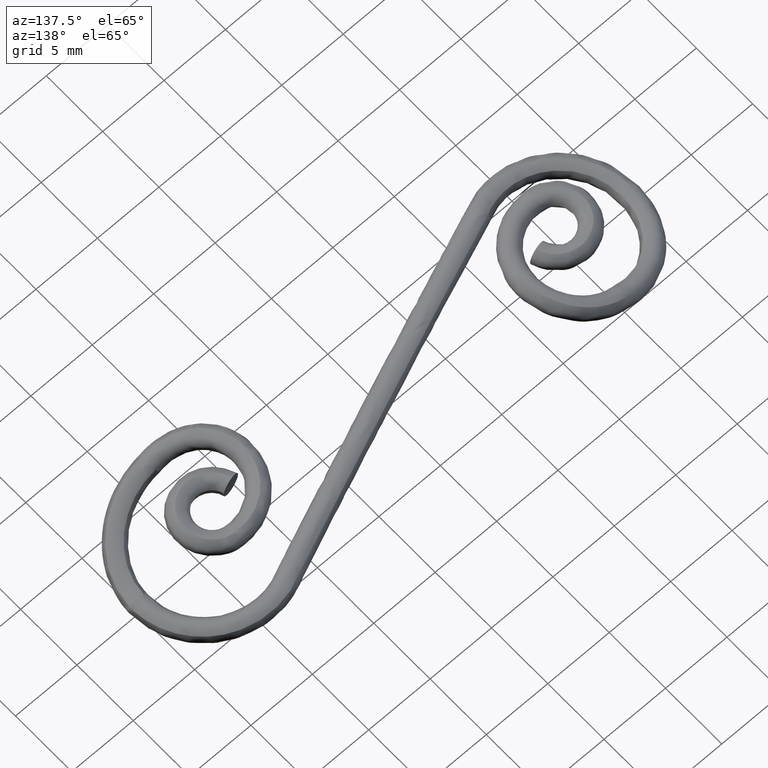
[diagram: clean part render]
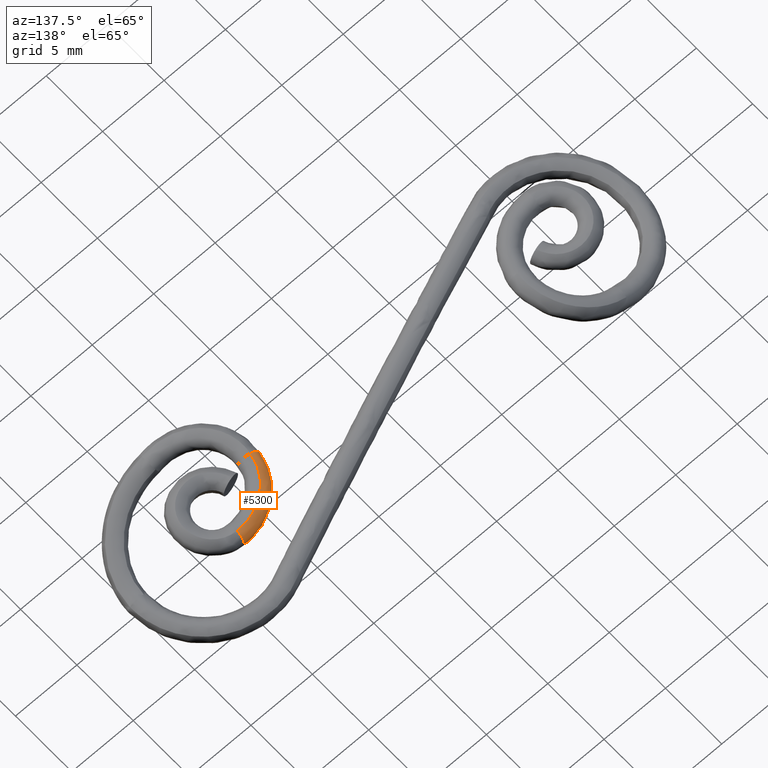
[diagram: same view with one face highlighted and labeled with its STEP entity id]
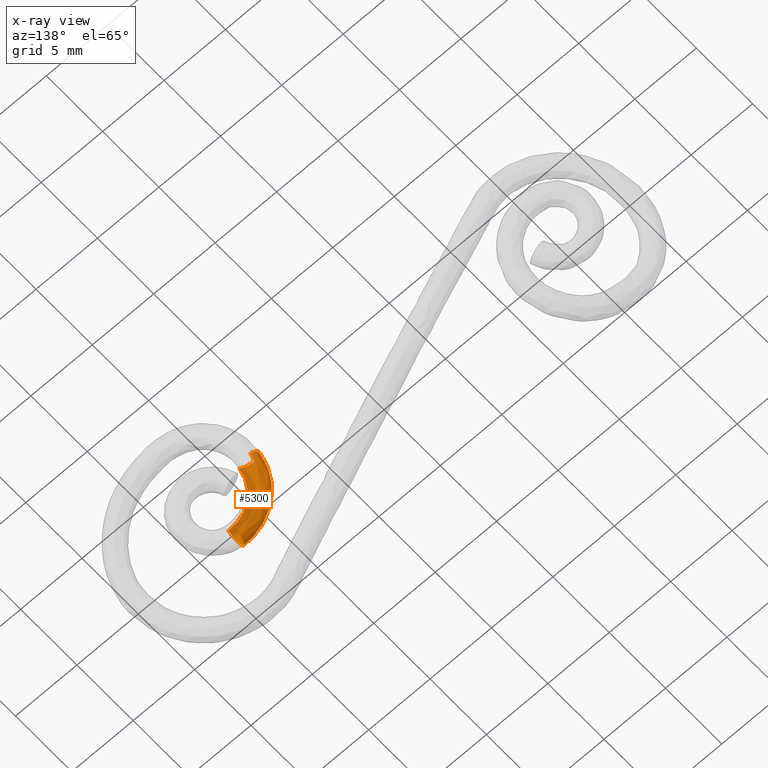
[diagram: x-ray of the same camera — body ghosted, the highlighted face saturated]
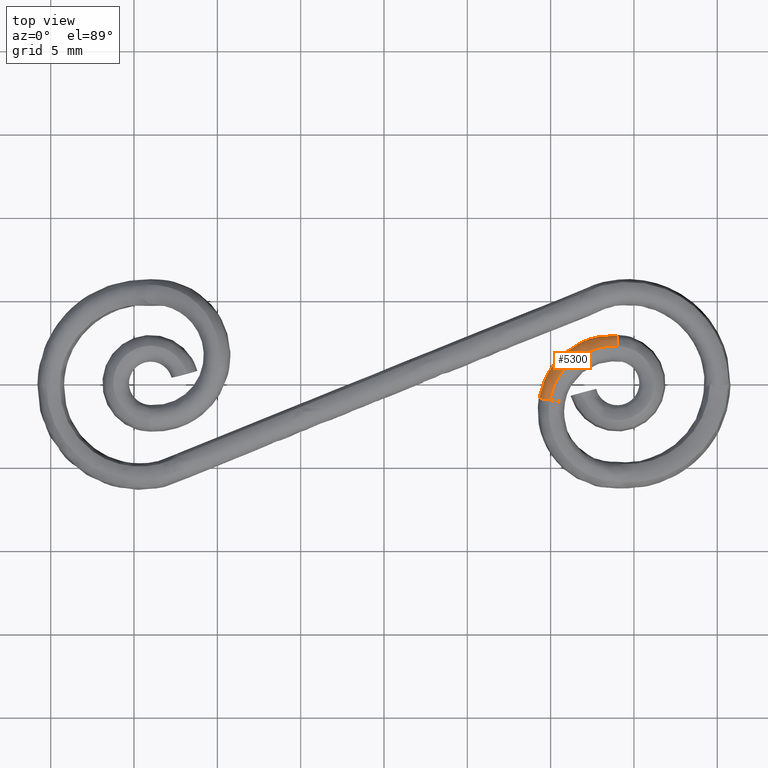
[diagram: same view with one face highlighted and labeled with its STEP entity id]
A machine part, auxiliary view. The second image highlights one B-rep face of the part: STEP entity #5300.
The next image is the same camera in x-ray: the body ghosted, the highlighted face saturated — about 0% of this face is hidden behind the body in this view.
A second angle (top view) of the same face is appended — the face is thin or edge-on in the first view.
In plain terms, the highlighted face is a freeform B-spline surface patch.
Its self-contained STEP definition (entity closure, byte-faithful):
#4702=CARTESIAN_POINT('',(9.282684114473470,-0.923350617557464,3.217396081615895));
#4703=VERTEX_POINT('',#4702);
#4704=CARTESIAN_POINT('',(10.513676460564820,-1.143521968190347,2.616905000033437));
#4705=VERTEX_POINT('',#4704);
#4706=CARTESIAN_POINT('',(9.282684114473470,-0.923350617557464,3.217396081615895));
#4707=CARTESIAN_POINT('',(9.284393471410823,-0.924282505267875,3.191397675883538));
#4708=CARTESIAN_POINT('',(9.287436445674933,-0.925445474761554,3.165060282524938));
#4709=CARTESIAN_POINT('',(9.296067311702984,-0.928165951323571,3.113570634881526));
#4710=CARTESIAN_POINT('',(9.301652022017734,-0.929728304030422,3.088206954885310));
#4711=CARTESIAN_POINT('',(9.322034644734202,-0.934993194110909,3.013205496741645));
#4712=CARTESIAN_POINT('',(9.340418147152501,-0.939266724288221,2.964644417163723));
#4713=CARTESIAN_POINT('',(9.386881283271949,-0.949357886877105,2.870433861863906));
#4714=CARTESIAN_POINT('',(9.414378799800854,-0.955047003249559,2.826048572100552));
#4715=CARTESIAN_POINT('',(9.461331661482269,-0.964414388401107,2.764199755471254));
#4716=CARTESIAN_POINT('',(9.477965608824727,-0.967682088388888,2.744332736526939));
#4717=CARTESIAN_POINT('',(9.513266926370232,-0.974517925103753,2.706148605410620));
#4718=CARTESIAN_POINT('',(9.532051285511635,-0.978107936283455,2.687736271717575));
#4719=CARTESIAN_POINT('',(9.590515990782665,-0.989143534768214,2.635973802800404));
#4720=CARTESIAN_POINT('',(9.632401806028099,-0.996873831954480,2.605957619772864));
#4721=CARTESIAN_POINT('',(9.721825127462742,-1.013059404118012,2.554651643379722));
#4722=CARTESIAN_POINT('',(9.769845843600786,-1.021599529300992,2.533189600907469));
#4723=CARTESIAN_POINT('',(9.867796435300242,-1.038744447100748,2.500451950932309));
#4724=CARTESIAN_POINT('',(9.917965901524250,-1.047395505733004,2.488922391279435));
#4725=CARTESIAN_POINT('',(9.995034987654710,-1.060491531662041,2.478982701405946));
#4726=CARTESIAN_POINT('',(10.021131936371949,-1.064893757440325,2.476914910369583));
#4727=CARTESIAN_POINT('',(10.072870636219109,-1.073556965170774,2.475403994993091));
#4728=CARTESIAN_POINT('',(10.098625814366370,-1.077837460704228,2.475936627422790));
#4729=CARTESIAN_POINT('',(10.175548039267600,-1.090525264485057,2.481407759362117));
#4730=CARTESIAN_POINT('',(10.226424315516271,-1.098786226625798,2.490276656927781));
#4731=CARTESIAN_POINT('',(10.326989034976100,-1.114841940856404,2.518783304107707));
#4732=CARTESIAN_POINT('',(10.375064426422171,-1.122381545492502,2.537868110567592));
#4733=CARTESIAN_POINT('',(10.444111030453330,-1.133012552462374,2.573208446737819));
#4734=CARTESIAN_POINT('',(10.466610334366811,-1.136442015465810,2.586118688061240));
#4735=CARTESIAN_POINT('',(10.497031095675601,-1.141028822539685,2.605585673404670));
#4736=CARTESIAN_POINT('',(10.505404505990130,-1.142285797013978,2.611167244362098));
#4737=CARTESIAN_POINT('',(10.513676460564820,-1.143521968190347,2.616905000033437));
#4738=B_SPLINE_CURVE_WITH_KNOTS('',3,(#4706,#4707,#4708,#4709,#4710,#4711,#4712,#4713,#4714,#4715,#4716,#4717,#4718,#4719,#4720,#4721,#4722,#4723,#4724,#4725,#4726,#4727,#4728,#4729,#4730,#4731,#4732,#4733,#4734,#4735,#4736,#4737),.UNSPECIFIED.,.F.,.U.,(4,2,2,2,2,2,2,2,2,2,2,2,2,2,2,4),(0.0,0.031250000000000,0.062500000000001,0.125000000000002,0.187500000000002,0.218750000000002,0.250000000000003,0.312500000000002,0.375000000000001,0.437500000000000,0.468750000000000,0.500000000000001,0.562500000000000,0.624999999999999,0.656249999999998,0.668263455900424),.UNSPECIFIED.);
#4739=EDGE_CURVE('',#4703,#4705,#4738,.T.);
#4768=CARTESIAN_POINT('',(9.945481316624836,-1.013603917874896,4.066437259172098));
#4769=VERTEX_POINT('',#4768);
#4791=CARTESIAN_POINT('',(9.282684114473470,-0.923350617557464,3.217396081615895));
#4792=CARTESIAN_POINT('',(9.280976861064485,-0.922417198559043,3.243368745901354));
#4793=CARTESIAN_POINT('',(9.280533650297882,-0.921681014407856,3.269932114586529));
#4794=CARTESIAN_POINT('',(9.282243214184797,-0.920659283423144,3.322703605380643));
#4795=CARTESIAN_POINT('',(9.284368457609974,-0.920369724447849,3.348846208459274));
#4796=CARTESIAN_POINT('',(9.294377606026378,-0.920133694338340,3.426578652125638));
#4797=CARTESIAN_POINT('',(9.305850561302021,-0.920812308984766,3.477481617082491));
#4798=CARTESIAN_POINT('',(9.330394346965294,-0.923103522019722,3.552432439641163));
#4799=CARTESIAN_POINT('',(9.339824998591581,-0.924084294059405,3.577169919345759));
#4800=CARTESIAN_POINT('',(9.360793988405469,-0.926438536457236,3.625112927196724));
#4801=CARTESIAN_POINT('',(9.383951477145580,-0.929192390499100,3.671796261254093));
#4802=CARTESIAN_POINT('',(9.411517854980900,-0.932748950489456,3.715942055775823));
#4803=CARTESIAN_POINT('',(9.441385540724168,-0.936723246638552,3.758763418637139));
#4804=CARTESIAN_POINT('',(9.457576409287773,-0.938934498675549,3.779619693839603));
#4805=CARTESIAN_POINT('',(9.508861683992169,-0.946092894350014,3.839235377240476));
#4806=CARTESIAN_POINT('',(9.546454454635233,-0.951530002331858,3.874988605699576));
#4807=CARTESIAN_POINT('',(9.628017603616060,-0.963643678151427,3.939016508754129));
#4808=CARTESIAN_POINT('',(9.672489979278657,-0.970399399709290,3.967488721962418));
#4809=CARTESIAN_POINT('',(9.764791829487322,-0.984693548435985,4.014702335734270));
#4810=CARTESIAN_POINT('',(9.812769132518300,-0.992250876191731,4.033692185384326));
#4811=CARTESIAN_POINT('',(9.887602975442666,-1.004228638331235,4.054928070389503));
#4812=CARTESIAN_POINT('',(9.913167579774942,-1.008351764558939,4.060802309664616));
#4813=CARTESIAN_POINT('',(9.940960775021365,-1.012868537977151,4.065676660435051));
#4814=CARTESIAN_POINT('',(9.943220849588242,-1.013236074686827,4.066062277724410));
#4815=CARTESIAN_POINT('',(9.945481316624836,-1.013603917874896,4.066437259172098));
#4816=B_SPLINE_CURVE_WITH_KNOTS('',3,(#4791,#4792,#4793,#4794,#4795,#4796,#4797,#4798,#4799,#4800,#4801,#4802,#4803,#4804,#4805,#4806,#4807,#4808,#4809,#4810,#4811,#4812,#4813,#4814,#4815),.UNSPECIFIED.,.F.,.U.,(4,2,2,2,2,1,2,2,2,2,2,2,4),(0.0,0.031250000000001,0.062500000000002,0.125000000000004,0.156250000000005,0.187500000000006,0.218750000000007,0.250000000000008,0.312500000000008,0.375000000000009,0.437500000000009,0.468750000000009,0.471515581245946),.UNSPECIFIED.);
#4817=EDGE_CURVE('',#4703,#4769,#4816,.T.);
#4949=CARTESIAN_POINT('',(10.722932929362081,-1.173111546270209,2.829531334773518));
#4950=VERTEX_POINT('',#4949);
#4951=CARTESIAN_POINT('',(10.513676460564820,-1.143521968190347,2.616905000033437));
#4952=CARTESIAN_POINT('',(10.526921893622941,-1.145501282832881,2.626092642992708));
#4953=CARTESIAN_POINT('',(10.539907194000120,-1.147427257746447,2.635680743774004));
#4954=CARTESIAN_POINT('',(10.593495488021940,-1.155312490280779,2.677777538408749));
#4955=CARTESIAN_POINT('',(10.631039853781861,-1.160679780205417,2.713581568676701));
#4956=CARTESIAN_POINT('',(10.682031562046710,-1.167703372069798,2.772895782447685));
#4957=CARTESIAN_POINT('',(10.698206159586761,-1.169881254022200,2.793718350816673));
#4958=CARTESIAN_POINT('',(10.716531187097541,-1.172281409081400,2.820011084614498));
#4959=CARTESIAN_POINT('',(10.719760666027950,-1.172701603158186,2.824756898034977));
#4960=CARTESIAN_POINT('',(10.722932929362081,-1.173111546270209,2.829531334773518));
#4961=B_SPLINE_CURVE_WITH_KNOTS('',3,(#4951,#4952,#4953,#4954,#4955,#4956,#4957,#4958,#4959,#4960),.UNSPECIFIED.,.F.,.U.,(4,2,2,2,4),(0.668263455900424,0.687499999999998,0.749999999999998,0.781249999999998,0.788081715581043),.UNSPECIFIED.);
#4962=EDGE_CURVE('',#4705,#4950,#4961,.T.);
#5018=CARTESIAN_POINT('',(10.723885286854820,-1.222017740586140,2.841492215932604));
#5019=CARTESIAN_POINT('',(10.605699959037690,-1.198289696586253,2.653523764025367));
#5020=CARTESIAN_POINT('',(10.405885924326880,-1.162833905628451,2.521205403999340));
#5021=CARTESIAN_POINT('',(9.984723313510408,-1.093353741525570,2.451334204795789));
#5022=CARTESIAN_POINT('',(9.767955796109913,-1.059789292187724,2.502769109848134));
#5023=CARTESIAN_POINT('',(9.431145535767213,-1.011769639940882,2.747132304448064));
#5024=CARTESIAN_POINT('',(9.313176814704532,-0.997610134095447,2.938555845331546));
#5025=CARTESIAN_POINT('',(9.244721107626766,-0.996986673295411,3.351802954415363));
#5026=CARTESIAN_POINT('',(9.294655660581356,-1.010526557510989,3.571081815028518));
#5027=CARTESIAN_POINT('',(9.537679512341164,-1.058258560191697,3.915423960066097));
#5028=CARTESIAN_POINT('',(9.732792749734017,-1.092657546230017,4.035768033732643));
#5029=CARTESIAN_POINT('',(9.942595169788911,-1.127159531988741,4.066212834213801));
#5030=CARTESIAN_POINT('',(10.728107801638140,-1.196600349275869,2.842128853946125));
#5031=CARTESIAN_POINT('',(10.609891975758540,-1.173077468666190,2.654155205131981));
#5032=CARTESIAN_POINT('',(10.410025581562390,-1.137973901268973,2.521827923089142));
#5033=CARTESIAN_POINT('',(9.988751710761443,-1.069242181724335,2.451937765382577));
#5034=CARTESIAN_POINT('',(9.771926553635456,-1.036065472405868,2.503362848775909));
#5035=CARTESIAN_POINT('',(9.435026026978745,-0.988653034674670,2.747710662319892));
#5036=CARTESIAN_POINT('',(9.317025235172567,-0.974709264198940,2.939128738520437));
#5037=CARTESIAN_POINT('',(9.248549619603439,-0.974219719265285,3.352372455463396));
#5038=CARTESIAN_POINT('',(9.298496457403353,-0.987676959345699,3.571653409506869));
#5039=CARTESIAN_POINT('',(9.541583203375160,-1.034985867477825,3.916006271771163));
#5040=CARTESIAN_POINT('',(9.736747606524288,-1.069040660375688,4.036359064039132));
#5041=CARTESIAN_POINT('',(9.946605469550091,-1.103169682030750,4.066813311901330));
#5042=CARTESIAN_POINT('',(10.748632024134031,-1.064696767324554,2.845455193775675));
#5043=CARTESIAN_POINT('',(10.630553565283220,-1.040103346196110,2.657509015257829));
#5044=CARTESIAN_POINT('',(10.430923010932711,-1.003161880572368,2.525228893928689));
#5045=CARTESIAN_POINT('',(10.010150289104500,-0.930524787364509,2.455438948472118));
#5046=CARTESIAN_POINT('',(9.793584761806592,-0.895324856191134,2.506915947859535));
#5047=CARTESIAN_POINT('',(9.457090832139441,-0.844743982514752,2.751345063536111));
#5048=CARTESIAN_POINT('',(9.339234503737885,-0.829674508653230,2.942792025230074));
#5049=CARTESIAN_POINT('',(9.270848576133638,-0.828486194294130,3.356053672339840));
#5050=CARTESIAN_POINT('',(9.320740086210369,-0.842374671241875,3.575323560645732));
#5051=CARTESIAN_POINT('',(9.563543547479645,-0.891891282318319,3.919619772817719));
#5052=CARTESIAN_POINT('',(9.758477487333543,-0.927742070771587,4.039926479606890));
#5053=CARTESIAN_POINT('',(9.968085618130026,-0.963817214097438,4.070330789810012));
#5054=CARTESIAN_POINT('',(10.770146625040660,-0.965326084853980,2.847863017053571));
#5055=CARTESIAN_POINT('',(10.653313491961590,-0.934326941347964,2.660074348433303));
#5056=CARTESIAN_POINT('',(10.455820956143951,-0.886388168505576,2.528064638370055));
#5057=CARTESIAN_POINT('',(10.039591392894460,-0.790382758173182,2.458849292323177));
#5058=CARTESIAN_POINT('',(9.825379521931856,-0.743076614059857,2.510623968859522));
#5059=CARTESIAN_POINT('',(9.492571543077309,-0.673536991219032,2.755519256567769));
#5060=CARTESIAN_POINT('',(9.376024811677400,-0.651731725975511,2.947131842534348));
#5061=CARTESIAN_POINT('',(9.308451880871910,-0.646362238721793,3.360496297935598));
#5062=CARTESIAN_POINT('',(9.357841784445361,-0.662831081131047,3.579702737183884));
#5063=CARTESIAN_POINT('',(9.598077083672077,-0.725557777453181,3.923674127601333));
#5064=CARTESIAN_POINT('',(9.790921747828612,-0.772155142823881,4.043716588335728));
#5065=CARTESIAN_POINT('',(9.998265935503438,-0.819875161147749,4.073834564789435));
#5066=CARTESIAN_POINT('',(10.864526177253911,-0.600575425296267,2.856451446555306));
#5067=CARTESIAN_POINT('',(10.751261505400530,-0.555786617275127,2.668987463718018));
#5068=CARTESIAN_POINT('',(10.559895393358749,-0.484173834745336,2.537535170360364));
#5069=CARTESIAN_POINT('',(10.156684067660629,-0.337863229503621,2.469504283927244));
#5070=CARTESIAN_POINT('',(9.949216488110558,-0.264495930653330,2.521892581846779));
#5071=CARTESIAN_POINT('',(9.626970398181957,-0.154143641844116,2.767748820216510));
#5072=CARTESIAN_POINT('',(9.514176225929965,-0.117838183017326,2.959702818085770));
#5073=CARTESIAN_POINT('',(9.448932827752820,-0.103467860938282,3.373279198345696));
#5074=CARTESIAN_POINT('',(9.496885359927831,-0.125491487763731,3.592354845551403));
#5075=CARTESIAN_POINT('',(9.729761639416866,-0.216655669060589,3.935656659027345));
#5076=CARTESIAN_POINT('',(9.916619552452548,-0.286387294253041,4.055154411828998));
#5077=CARTESIAN_POINT('',(10.117476503271909,-0.359175343779395,4.084682149669770));
#5078=CARTESIAN_POINT('',(11.118255819268310,0.015086702069043,2.869417316011215));
#5079=CARTESIAN_POINT('',(11.014586770464181,0.083159209301740,2.682443691537567));
#5080=CARTESIAN_POINT('',(10.839694559882661,0.194745273695804,2.551833238420315));
#5081=CARTESIAN_POINT('',(10.471489047813140,0.425995568027232,2.485591184327680));
#5082=CARTESIAN_POINT('',(10.282156701877520,0.543366786479200,2.538906204538064));
#5083=CARTESIAN_POINT('',(9.988311180999258,0.722630705705715,2.786213718554847));
#5084=CARTESIAN_POINT('',(9.885607458174583,0.783419528923524,2.978683333065492));
#5085=CARTESIAN_POINT('',(9.826627897851219,0.812987586747805,3.392579770579370));
#5086=CARTESIAN_POINT('',(9.870715246771573,0.781584746123179,3.611457887538302));
#5087=CARTESIAN_POINT('',(10.083803082513210,0.642404185554752,3.953748469285569));
#5088=CARTESIAN_POINT('',(10.254562677608270,0.533610640959421,4.072423575365268));
#5089=CARTESIAN_POINT('',(10.437975564126630,0.418495536565132,4.101059904267840));
#5090=CARTESIAN_POINT('',(11.805616767243610,0.812299128772957,2.880390809639090));
#5091=CARTESIAN_POINT('',(11.727942785756840,0.910521455868406,2.693832196747894));
#5092=CARTESIAN_POINT('',(11.597679024234109,1.073868403908255,2.563934224537018));
#5093=CARTESIAN_POINT('',(11.324305364558340,1.415105884243859,2.499206120603065));
#5094=CARTESIAN_POINT('',(11.184101822783200,1.589457100020376,2.553305455344021));
#5095=CARTESIAN_POINT('',(10.967193942568111,1.857953538683045,2.801841225721380));
#5096=CARTESIAN_POINT('',(10.891825286978181,1.950445404913085,2.994747218662001));
#5097=CARTESIAN_POINT('',(10.849814100802730,1.999692562252817,3.408914520302907));
#5098=CARTESIAN_POINT('',(10.883430268182680,1.956144597477699,3.627625455021772));
#5099=CARTESIAN_POINT('',(11.042910185160800,1.754788150414612,3.969060188582972));
#5100=CARTESIAN_POINT('',(11.170058813555400,1.595413838444395,4.087039058186542));
#5101=CARTESIAN_POINT('',(11.306215185851780,1.425490039723697,4.114920957249280));
#5102=CARTESIAN_POINT('',(12.732938722511371,1.310502777288812,2.879180339343050));
#5103=CARTESIAN_POINT('',(12.690334791460900,1.427566813414968,2.692575957193149));
#5104=CARTESIAN_POINT('',(12.620279284973160,1.623260860003110,2.562599398800569));
#5105=CARTESIAN_POINT('',(12.474843123688260,2.033232833908962,2.497704295240786));
#5106=CARTESIAN_POINT('',(12.400919095558670,2.243192597892606,2.551717109491804));
#5107=CARTESIAN_POINT('',(12.287807399107489,2.567453052054614,2.800117377365849));
#5108=CARTESIAN_POINT('',(12.249316253899281,2.679756999990731,2.992975222695169));
#5109=CARTESIAN_POINT('',(12.230196702445490,2.741301933014906,3.407112622076535));
#5110=CARTESIAN_POINT('',(12.249686031249629,2.690163934541294,3.625841986280712));
#5111=CARTESIAN_POINT('',(12.336843326005489,2.449951567731705,3.967371108893681));
#5112=CARTESIAN_POINT('',(12.405156392956370,2.258967657872419,4.085426773433011));
#5113=CARTESIAN_POINT('',(12.477559082308611,2.054792164721819,4.113391891796798));
#5114=CARTESIAN_POINT('',(13.389040290479871,1.424775377554073,2.871715730038493));
#5115=CARTESIAN_POINT('',(13.371249890218410,1.546161189588705,2.684829039716975));
#5116=CARTESIAN_POINT('',(13.343794179520520,1.749274653870411,2.554367810106427));
#5117=CARTESIAN_POINT('',(13.288878939718360,2.175012039954622,2.488442815689886));
#5118=CARTESIAN_POINT('',(13.261850299500020,2.393139164710236,2.541922080844824));
#5119=CARTESIAN_POINT('',(13.222178465922021,2.730189832173123,2.789486787020671));
#5120=CARTESIAN_POINT('',(13.209779565144871,2.847037872619553,2.982047764998792));
#5121=CARTESIAN_POINT('',(13.206856611960010,2.911403222268202,3.396000877484363));
#5122=CARTESIAN_POINT('',(13.216350558616840,2.858524180247444,3.614843956952251));
#5123=CARTESIAN_POINT('',(13.252336582033680,2.609399350591688,3.956955265896053));
#5124=CARTESIAN_POINT('',(13.279021093113080,2.411165188735209,4.075484551807093));
#5125=CARTESIAN_POINT('',(13.306315491314340,2.199133496299915,4.103962884432002));
#5126=CARTESIAN_POINT('',(13.765617584391791,1.437869474431781,2.865975142735226));
#5127=CARTESIAN_POINT('',(13.762066628949221,1.559750704008203,2.678871392816931));
#5128=CARTESIAN_POINT('',(13.759057139631810,1.763714590746380,2.548037513159723));
#5129=CARTESIAN_POINT('',(13.756088012044620,2.191258930928994,2.481320666195292));
#5130=CARTESIAN_POINT('',(13.755970636249719,2.410322118579132,2.534389701897571));
#5131=CARTESIAN_POINT('',(13.758442796952369,2.748838600471316,2.781311971618101));
#5132=CARTESIAN_POINT('',(13.761017110284870,2.866207366209629,2.973644698610735));
#5133=CARTESIAN_POINT('',(13.767388663184310,2.930895784425088,3.387456121425092));
#5134=CARTESIAN_POINT('',(13.771146667778980,2.877817096276300,3.606386634708450));
#5135=CARTESIAN_POINT('',(13.777767647760900,2.627670625194889,3.948945571653906));
#5136=CARTESIAN_POINT('',(13.780563291688750,2.428605434930682,4.067839011630609));
#5137=CARTESIAN_POINT('',(13.781971957793751,2.215673305515925,4.096711939454778));
#5138=CARTESIAN_POINT('',(13.863892698274880,1.437363970919694,2.864368210911859));
#5139=CARTESIAN_POINT('',(13.866626104786009,1.559080164061609,2.677158021711698));
#5140=CARTESIAN_POINT('',(13.874405579786069,1.762760669242253,2.546141406250429));
#5141=CARTESIAN_POINT('',(13.894362067708860,2.189702795145082,2.479036260045456));
#5142=CARTESIAN_POINT('',(13.906121562098329,2.408453977008674,2.531904132396345));
#5143=CARTESIAN_POINT('',(13.927193320120670,2.746481805756770,2.778511372078778));
#5144=CARTESIAN_POINT('',(13.936375827343490,2.863676933182827,2.970732172287724));
#5145=CARTESIAN_POINT('',(13.946849360644981,2.928257493043446,3.384474115450149));
#5146=CARTESIAN_POINT('',(13.948075892431399,2.875245249026215,3.603447503709932));
#5147=CARTESIAN_POINT('',(13.941737058695940,2.625439132255797,3.946225943473071));
#5148=CARTESIAN_POINT('',(13.933989718171571,2.426650864920054,4.065297953084255));
#5149=CARTESIAN_POINT('',(13.923974115694270,2.214018831387949,4.094364377807505));
#5150=CARTESIAN_POINT('',(13.991194229176610,1.429352808425819,2.862082592143355));
#5151=CARTESIAN_POINT('',(13.995199448940671,1.550967407230903,2.674848970308177));
#5152=CARTESIAN_POINT('',(14.005162366669300,1.754473485668401,2.543792125534382));
#5153=CARTESIAN_POINT('',(14.029758480839030,2.181044958690872,2.476601495222564));
#5154=CARTESIAN_POINT('',(14.043921584977600,2.399604115083266,2.529425081456487));
#5155=CARTESIAN_POINT('',(14.068757480119841,2.737331216534012,2.775962967286627));
#5156=CARTESIAN_POINT('',(14.079277335779720,2.854419493962881,2.968159126829749));
#5157=CARTESIAN_POINT('',(14.090581015964871,2.918933712061676,3.381885774090423));
#5158=CARTESIAN_POINT('',(14.091295234290079,2.865962384801243,3.600868601303633));
#5159=CARTESIAN_POINT('',(14.082333626406459,2.616365781429651,3.943695364663328));
#5160=CARTESIAN_POINT('',(14.072452623948610,2.417747964517549,4.062806686403176));
#5161=CARTESIAN_POINT('',(14.060125007817440,2.205300634569258,4.091915709482811));
#5162=CARTESIAN_POINT('',(14.011565605633450,1.428247347939489,2.861721733658975));
#5163=CARTESIAN_POINT('',(14.015459492572820,1.549870260966133,2.674490147017899));
#5164=CARTESIAN_POINT('',(14.025231274604909,1.753390613281790,2.543436796257928));
#5165=CARTESIAN_POINT('',(14.049421241955439,2.179992417126703,2.476253590425022));
#5166=CARTESIAN_POINT('',(14.063373937213610,2.398567286766742,2.529081022993651));
#5167=CARTESIAN_POINT('',(14.087880324629470,2.736318995768766,2.775624932321002));
#5168=CARTESIAN_POINT('',(14.098283110497441,2.853416015972034,2.967823231934931));
#5169=CARTESIAN_POINT('',(14.109514120594040,2.917935661166803,3.381551207629109));
#5170=CARTESIAN_POINT('',(14.110273186113030,2.864960984808790,3.600533215024754));
#5171=CARTESIAN_POINT('',(14.101541172368830,2.615347235567947,3.943355781341190));
#5172=CARTESIAN_POINT('',(14.091846947864800,2.416715470208013,4.062463688727891));
#5173=CARTESIAN_POINT('',(14.079721722389040,2.204253025834838,4.091569012048968));
#5174=B_SPLINE_SURFACE_WITH_KNOTS('',3,3,((#5018,#5030,#5042,#5054,#5066,#5078,#5090,#5102,#5114,#5126,#5138,#5150,#5162),(#5019,#5031,#5043,#5055,#5067,#5079,#5091,#5103,#5115,#5127,#5139,#5151,#5163),(#5020,#5032,#5044,#5056,#5068,#5080,#5092,#5104,#5116,#5128,#5140,#5152,#5164),(#5021,#5033,#5045,#5057,#5069,#5081,#5093,#5105,#5117,#5129,#5141,#5153,#5165),(#5022,#5034,#5046,#5058,#5070,#5082,#5094,#5106,#5118,#5130,#5142,#5154,#5166),(#5023,#5035,#5047,#5059,#5071,#5083,#5095,#5107,#5119,#5131,#5143,#5155,#5167),(#5024,#5036,#5048,#5060,#5072,#5084,#5096,#5108,#5120,#5132,#5144,#5156,#5168),(#5025,#5037,#5049,#5061,#5073,#5085,#5097,#5109,#5121,#5133,#5145,#5157,#5169),(#5026,#5038,#5050,#5062,#5074,#5086,#5098,#5110,#5122,#5134,#5146,#5158,#5170),(#5027,#5039,#5051,#5063,#5075,#5087,#5099,#5111,#5123,#5135,#5147,#5159,#5171),(#5028,#5040,#5052,#5064,#5076,#5088,#5100,#5112,#5124,#5136,#5148,#5160,#5172),(#5029,#5041,#5053,#5065,#5077,#5089,#5101,#5113,#5125,#5137,#5149,#5161,#5173)),.UNSPECIFIED.,.F.,.F.,.U.,(4,2,2,2,2,4),(4,1,2,1,1,1,2,1,4),(0.0,0.669900651734567,1.298796715403042,1.927692779071516,2.556588842739990,3.201336271650499),(0.0,0.091780715284903,0.522435171529594,1.814398540263667,3.537016365242431,5.259634190221195,6.551597558955268,6.982252015199959,7.056062996105136),.UNSPECIFIED.);
#5175=CARTESIAN_POINT('',(14.000083289552700,2.340928418273295,2.537908736081770));
#5176=VERTEX_POINT('',#5175);
#5177=CARTESIAN_POINT('',(13.977222766019240,1.439108920414592,2.849247982385545));
#5178=VERTEX_POINT('',#5177);
#5179=CARTESIAN_POINT('',(14.000083289552700,2.340928418273295,2.537908736081770));
#5180=CARTESIAN_POINT('',(13.999693806869280,2.328503817977616,2.534004675398026));
#5181=CARTESIAN_POINT('',(13.999305980791579,2.316065011134508,2.530416259467105));
#5182=CARTESIAN_POINT('',(13.998520685539111,2.290523464823249,2.523712841030025));
#5183=CARTESIAN_POINT('',(13.998127891598100,2.277656304125562,2.520666471585527));
#5184=CARTESIAN_POINT('',(13.996956867379490,2.239010903087182,2.512493562192001));
#5185=CARTESIAN_POINT('',(13.996185177020150,2.213166382759186,2.508319901344959));
#5186=CARTESIAN_POINT('',(13.993896748241781,2.135394807883654,2.499548905937878));
#5187=CARTESIAN_POINT('',(13.992406277760621,2.083232819117181,2.498653050834141));
#5188=CARTESIAN_POINT('',(13.990227334752779,2.004482951803680,2.505295383794991));
#5189=CARTESIAN_POINT('',(13.989515003763749,1.978301576758806,2.508860532696242));
#5190=CARTESIAN_POINT('',(13.988141158095800,1.926920031087304,2.518561646540816));
#5191=CARTESIAN_POINT('',(13.986810692122200,1.876259982092531,2.530827542616748));
#5192=CARTESIAN_POINT('',(13.985563665377960,1.826988113839497,2.548028152579439));
#5193=CARTESIAN_POINT('',(13.984358222543239,1.778408262882686,2.567688749085674));
#5194=CARTESIAN_POINT('',(13.983773638847770,1.754349784771185,2.578816554497535));
#5195=CARTESIAN_POINT('',(13.982114256666129,1.684522425295416,2.615304032258404));
#5196=CARTESIAN_POINT('',(13.981125813104830,1.640817672810364,2.643773912405794));
#5197=CARTESIAN_POINT('',(13.979382586846320,1.559056873673673,2.708938034934252));
#5198=CARTESIAN_POINT('',(13.978625548919331,1.520804582881558,2.746005541697085));
#5199=CARTESIAN_POINT('',(13.977718920311441,1.470051093098112,2.806190688003181));
#5200=CARTESIAN_POINT('',(13.977451562759059,1.454027444621460,2.827315830904424));
#5201=CARTESIAN_POINT('',(13.977222766019240,1.439108920414592,2.849247982385545));
#5202=B_SPLINE_CURVE_WITH_KNOTS('',3,(#5179,#5180,#5181,#5182,#5183,#5184,#5185,#5186,#5187,#5188,#5189,#5190,#5191,#5192,#5193,#5194,#5195,#5196,#5197,#5198,#5199,#5200,#5201),.UNSPECIFIED.,.F.,.U.,(4,2,2,2,2,2,1,2,2,2,2,4),(0.0,0.015625000000000,0.031250000000001,0.062500000000001,0.125000000000001,0.156250000000002,0.187500000000002,0.218750000000001,0.250000000000001,0.312500000000001,0.375000000000001,0.406847325970618),.UNSPECIFIED.);
#5203=EDGE_CURVE('',#5176,#5178,#5202,.T.);
#5204=ORIENTED_EDGE('',*,*,#5203,.T.);
#5205=CARTESIAN_POINT('',(10.722932929362081,-1.173111546270209,2.829531334773518));
#5206=CARTESIAN_POINT('',(10.724278081945810,-1.164863342010870,2.829738339022690));
#5207=CARTESIAN_POINT('',(10.725589936140770,-1.156819963638378,2.829940201069816));
#5208=CARTESIAN_POINT('',(10.743748068598590,-1.045498779496799,2.832733961198222));
#5209=CARTESIAN_POINT('',(10.761585509203730,-0.963073535632809,2.834731339267771));
#5210=CARTESIAN_POINT('',(10.808961762006231,-0.780134763551409,2.839038207624336));
#5211=CARTESIAN_POINT('',(10.836837949883339,-0.689785146752969,2.841092697227948));
#5212=CARTESIAN_POINT('',(10.932690103512980,-0.423141226777199,2.846935847007690));
#5213=CARTESIAN_POINT('',(11.012930670775360,-0.251258971481862,2.850403325978216));
#5214=CARTESIAN_POINT('',(11.298591681123970,0.238089934700815,2.859347858426926));
#5215=CARTESIAN_POINT('',(11.549025739125369,0.528542280498056,2.863345928692363));
#5216=CARTESIAN_POINT('',(12.138368932620560,1.001356687045959,2.866909577570695));
#5217=CARTESIAN_POINT('',(12.476225325882821,1.182874160636790,2.866468790447811));
#5218=CARTESIAN_POINT('',(13.015915899017431,1.355682930057993,2.862515005797252));
#5219=CARTESIAN_POINT('',(13.201126228554481,1.396764885808168,2.860652659118121));
#5220=CARTESIAN_POINT('',(13.482243919455090,1.432553869605738,2.857088976003830));
#5221=CARTESIAN_POINT('',(13.576500666579930,1.440188265892128,2.855773001583805));
#5222=CARTESIAN_POINT('',(13.765386037091091,1.446795925244798,2.852894763401491));
#5223=CARTESIAN_POINT('',(13.849730434641449,1.446348551357812,2.851515262503323));
#5224=CARTESIAN_POINT('',(13.961849177718490,1.439982209894644,2.849521389434121));
#5225=CARTESIAN_POINT('',(13.969443417122379,1.439550870329269,2.849386333244135));
#5226=CARTESIAN_POINT('',(13.977222766019240,1.439108920414592,2.849247982385545));
#5227=B_SPLINE_CURVE_WITH_KNOTS('',3,(#5205,#5206,#5207,#5208,#5209,#5210,#5211,#5212,#5213,#5214,#5215,#5216,#5217,#5218,#5219,#5220,#5221,#5222,#5223,#5224,#5225,#5226),.UNSPECIFIED.,.F.,.U.,(4,2,2,2,2,2,2,2,2,2,4),(-0.004690423051319,0.0,0.062500000000000,0.125000000000000,0.250000000000000,0.500000000000000,0.750000000000000,0.875000000000000,0.937500000000000,1.0,1.004386766889564),.UNSPECIFIED.);
#5228=EDGE_CURVE('',#4950,#5178,#5227,.T.);
#5229=ORIENTED_EDGE('',*,*,#5228,.F.);
#5230=ORIENTED_EDGE('',*,*,#4962,.F.);
#5231=ORIENTED_EDGE('',*,*,#4739,.F.);
#5232=ORIENTED_EDGE('',*,*,#4817,.T.);
#5233=CARTESIAN_POINT('',(14.010598828068220,2.223834789855833,4.090351000279215));
#5234=VERTEX_POINT('',#5233);
#5235=CARTESIAN_POINT('',(9.945481316624836,-1.013603917874896,4.066437259172098));
#5236=CARTESIAN_POINT('',(9.963502119791386,-0.909739055474956,4.069026338987561));
#5237=CARTESIAN_POINT('',(9.986270336150367,-0.803792943267293,4.071596200813586));
#5238=CARTESIAN_POINT('',(10.042923425067331,-0.585033838369071,4.076746218829854));
#5239=CARTESIAN_POINT('',(10.078178432367050,-0.470769272921904,4.079344432582950));
#5240=CARTESIAN_POINT('',(10.199402545790750,-0.133546498609177,4.086733960314437));
#5241=CARTESIAN_POINT('',(10.300882610434410,0.083831786706494,4.091119070346838));
#5242=CARTESIAN_POINT('',(10.662157225456800,0.702707773862347,4.102430575032636));
#5243=CARTESIAN_POINT('',(10.978880170425020,1.070040522374885,4.107486486528388));
#5244=CARTESIAN_POINT('',(11.724219754404020,1.668004628943284,4.111992558414138));
#5245=CARTESIAN_POINT('',(12.151504995231891,1.897567845251591,4.111434669619201));
#5246=CARTESIAN_POINT('',(12.834048672606110,2.116116685716465,4.106433738480265));
#5247=CARTESIAN_POINT('',(13.068283117218090,2.168072313296127,4.104078245207694));
#5248=CARTESIAN_POINT('',(13.423811005337610,2.213333698935546,4.099570999374536));
#5249=CARTESIAN_POINT('',(13.543016950449500,2.222988629237328,4.097906604473846));
#5250=CARTESIAN_POINT('',(13.778349855506100,2.231220648814439,4.094320426178091));
#5251=CARTESIAN_POINT('',(13.896553023757789,2.229993282514239,4.092370413681682));
#5252=CARTESIAN_POINT('',(14.010598828068220,2.223834789855833,4.090351000279215));
#5253=B_SPLINE_CURVE_WITH_KNOTS('',3,(#5235,#5236,#5237,#5238,#5239,#5240,#5241,#5242,#5243,#5244,#5245,#5246,#5247,#5248,#5249,#5250,#5251,#5252),.UNSPECIFIED.,.F.,.U.,(4,2,2,2,2,2,2,2,4),(0.006808814426573,0.062500000000000,0.125000000000000,0.250000000000000,0.500000000000000,0.750000000000000,0.875000000000000,0.937500000000000,0.998142766915074),.UNSPECIFIED.);
#5254=EDGE_CURVE('',#4769,#5234,#5253,.T.);
#5255=ORIENTED_EDGE('',*,*,#5254,.T.);
#5256=CARTESIAN_POINT('',(14.000083289552700,2.340928418273295,2.537908736081770));
#5257=CARTESIAN_POINT('',(14.000874002562931,2.365788551669839,2.545720288984660));
#5258=CARTESIAN_POINT('',(14.001672974282929,2.390539083435983,2.554817224121026));
#5259=CARTESIAN_POINT('',(14.003262781027271,2.438713685545300,2.575239613144821));
#5260=CARTESIAN_POINT('',(14.004052450404160,2.462154507828537,2.586552096122365));
#5261=CARTESIAN_POINT('',(14.006404518114190,2.530542810958271,2.623784504540085));
#5262=CARTESIAN_POINT('',(14.007949338377280,2.573554782479151,2.653001718934399));
#5263=CARTESIAN_POINT('',(14.010227226324609,2.633935343006348,2.703876018911033));
#5264=CARTESIAN_POINT('',(14.010976220906860,2.653271568024942,2.721929192494538));
#5265=CARTESIAN_POINT('',(14.012425712949909,2.689715925373060,2.759465437994676));
#5266=CARTESIAN_POINT('',(14.013835141165030,2.724157133366223,2.798616179849065));
#5267=CARTESIAN_POINT('',(14.015164250213489,2.754712476810588,2.840898934897998));
#5268=CARTESIAN_POINT('',(14.016451447177770,2.783311747881377,2.884758337542855));
#5269=CARTESIAN_POINT('',(14.017077226070940,2.796696180475375,2.907603740325667));
#5270=CARTESIAN_POINT('',(14.018859776180740,2.833244742720813,2.977540063244737));
#5271=CARTESIAN_POINT('',(14.019921610363751,2.852852527096815,3.025875924124474));
#5272=CARTESIAN_POINT('',(14.021778017832190,2.882454489415450,3.126006342993785));
#5273=CARTESIAN_POINT('',(14.022575030971440,2.892379345653753,3.178390978678043));
#5274=CARTESIAN_POINT('',(14.023816462847011,2.901186258984024,3.282537295417516));
#5275=CARTESIAN_POINT('',(14.024273489802740,2.900377650863367,3.334614761854112));
#5276=CARTESIAN_POINT('',(14.024719619550950,2.891614803456294,3.412737223264321));
#5277=CARTESIAN_POINT('',(14.024828234895949,2.887389259489877,3.438912944079235));
#5278=CARTESIAN_POINT('',(14.024960298893291,2.876522496852922,3.490334064713918));
#5279=CARTESIAN_POINT('',(14.024984516127120,2.869890142441935,3.515632041787251));
#5280=CARTESIAN_POINT('',(14.024934580501940,2.846465987557207,3.590312252610547));
#5281=CARTESIAN_POINT('',(14.024738830440260,2.826160979022877,3.638557524748970));
#5282=CARTESIAN_POINT('',(14.024005951428469,2.775653097500901,3.731349810343306));
#5283=CARTESIAN_POINT('',(14.023478346718649,2.746207401491131,3.774411822405466));
#5284=CARTESIAN_POINT('',(14.022460771637940,2.695870695904223,3.834098842878195));
#5285=CARTESIAN_POINT('',(14.022084251916770,2.678073616805671,3.853184684377171));
#5286=CARTESIAN_POINT('',(14.021257901799711,2.640446958004341,3.889739787374520));
#5287=CARTESIAN_POINT('',(14.020805965026220,2.620531947103094,3.907262604705405));
#5288=CARTESIAN_POINT('',(14.019370605170421,2.558994897450045,3.956324172186003));
#5289=CARTESIAN_POINT('',(14.018302078035370,2.515283863892249,3.984761871998021));
#5290=CARTESIAN_POINT('',(14.015952607614039,2.422570248415533,4.033226480147780));
#5291=CARTESIAN_POINT('',(14.014662588941141,2.373258398922102,4.053235276303716));
#5292=CARTESIAN_POINT('',(14.012440053125520,2.290610344302293,4.077594224494668));
#5293=CARTESIAN_POINT('',(14.011533867924969,2.257480731761717,4.085076675165399));
#5294=CARTESIAN_POINT('',(14.010598828068220,2.223834789855833,4.090351000279215));
#5295=B_SPLINE_CURVE_WITH_KNOTS('',3,(#5256,#5257,#5258,#5259,#5260,#5261,#5262,#5263,#5264,#5265,#5266,#5267,#5268,#5269,#5270,#5271,#5272,#5273,#5274,#5275,#5276,#5277,#5278,#5279,#5280,#5281,#5282,#5283,#5284,#5285,#5286,#5287,#5288,#5289,#5290,#5291,#5292,#5293,#5294),.UNSPECIFIED.,.F.,.U.,(4,2,2,2,2,1,2,2,2,2,2,2,2,2,2,2,2,2,2,4),(0.0,0.031250000000000,0.062500000000001,0.125000000000002,0.156250000000002,0.187500000000002,0.218750000000002,0.250000000000003,0.312500000000003,0.375000000000004,0.437500000000004,0.468750000000005,0.500000000000005,0.562500000000005,0.625000000000005,0.656250000000005,0.687500000000005,0.750000000000004,0.812500000000003,0.853273728018793),.UNSPECIFIED.);
#5296=EDGE_CURVE('',#5176,#5234,#5295,.T.);
#5297=ORIENTED_EDGE('',*,*,#5296,.F.);
#5298=EDGE_LOOP('',(#5204,#5229,#5230,#5231,#5232,#5255,#5297));
#5299=FACE_OUTER_BOUND('',#5298,.T.);
#5300=ADVANCED_FACE('',(#5299),#5174,.T.);